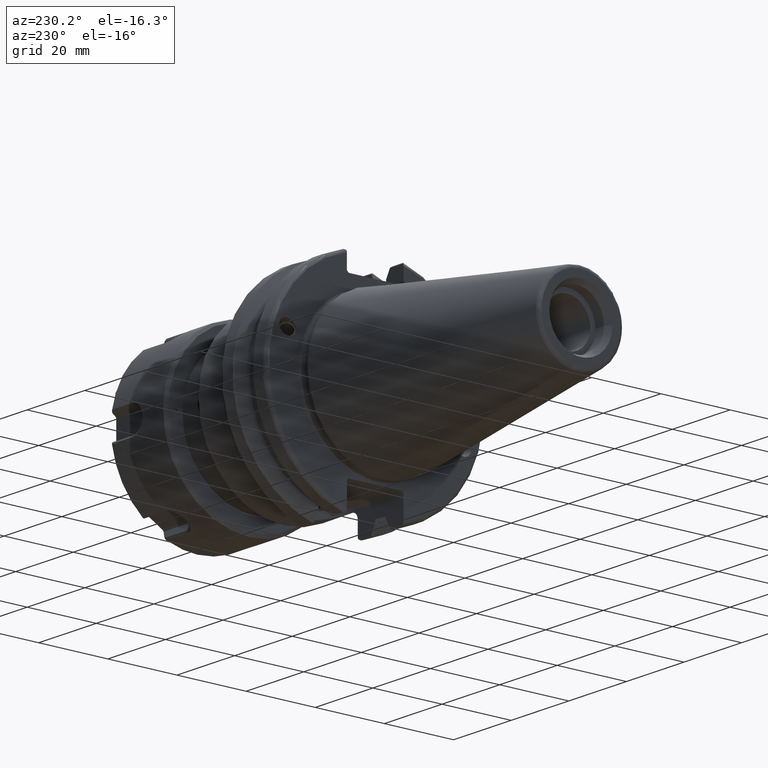
[diagram: clean part render]
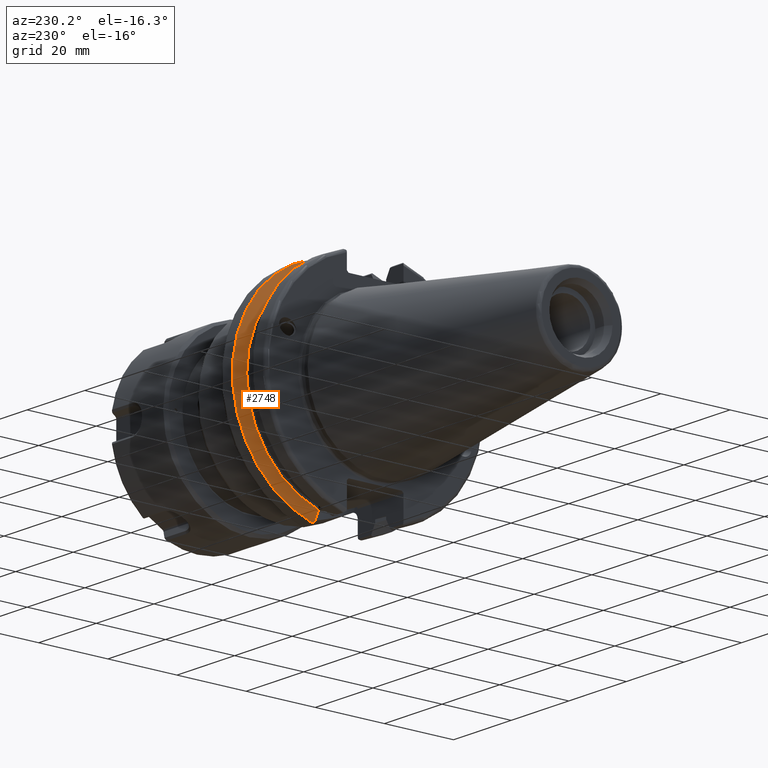
[diagram: same view with one face highlighted and labeled with its STEP entity id]
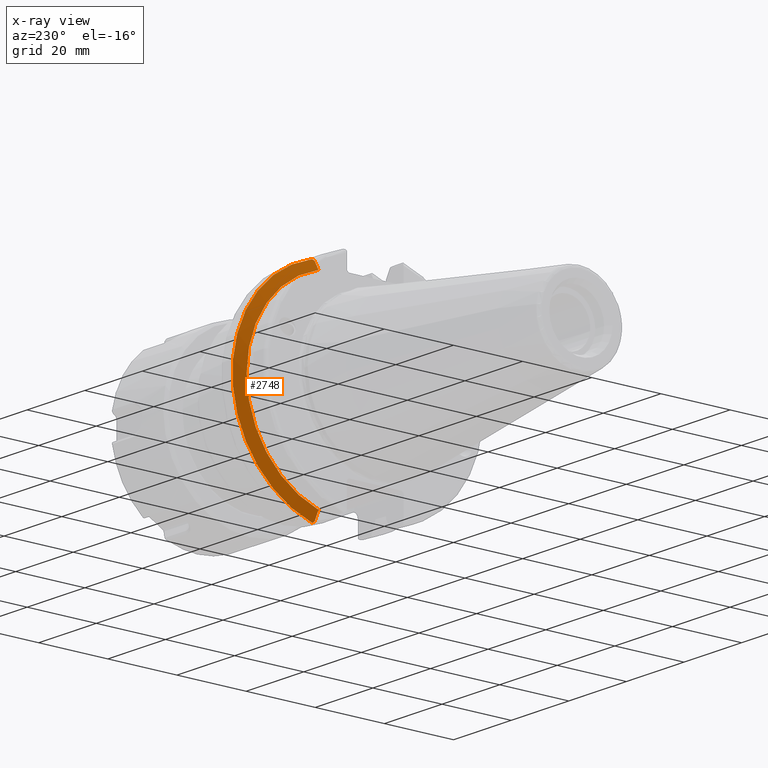
[diagram: x-ray of the same camera — body ghosted, the highlighted face saturated]
A machine part, auxiliary view. The second image highlights one B-rep face of the part: STEP entity #2748.
The next image is the same camera in x-ray: the body ghosted, the highlighted face saturated — about 0% of this face is hidden behind the body in this view.
In plain terms, the highlighted conical surface has half-angle 60 deg.
Its self-contained STEP definition (entity closure, byte-faithful):
#117=(
BOUNDED_CURVE()
B_SPLINE_CURVE(2,(#4370,#4371,#4372),.UNSPECIFIED.,.F.,.F.)
B_SPLINE_CURVE_WITH_KNOTS((3,3),(0.329353533631213,0.393258405001023),
 .UNSPECIFIED.)
CURVE()
GEOMETRIC_REPRESENTATION_ITEM()
RATIONAL_B_SPLINE_CURVE((1.00047644010591,1.00028444218294,1.))
REPRESENTATION_ITEM('')
);
#119=(
BOUNDED_CURVE()
B_SPLINE_CURVE(2,(#4397,#4398,#4399),.UNSPECIFIED.,.F.,.F.)
B_SPLINE_CURVE_WITH_KNOTS((3,3),(0.0550586467390499,0.33160778953585),
 .UNSPECIFIED.)
CURVE()
GEOMETRIC_REPRESENTATION_ITEM()
RATIONAL_B_SPLINE_CURVE((1.00031614445126,1.00095203904259,1.))
REPRESENTATION_ITEM('')
);
#127=(
BOUNDED_CURVE()
B_SPLINE_CURVE(2,(#4585,#4586,#4587),.UNSPECIFIED.,.F.,.F.)
B_SPLINE_CURVE_WITH_KNOTS((3,3),(0.,0.276549142796799),.UNSPECIFIED.)
CURVE()
GEOMETRIC_REPRESENTATION_ITEM()
RATIONAL_B_SPLINE_CURVE((1.,1.00095203904259,1.00031614445126))
REPRESENTATION_ITEM('')
);
#131=(
BOUNDED_CURVE()
B_SPLINE_CURVE(2,(#4624,#4625,#4626),.UNSPECIFIED.,.F.,.F.)
B_SPLINE_CURVE_WITH_KNOTS((3,3),(0.,0.0639048713675657),.UNSPECIFIED.)
CURVE()
GEOMETRIC_REPRESENTATION_ITEM()
RATIONAL_B_SPLINE_CURVE((1.,1.00028444218289,1.00047644010584))
REPRESENTATION_ITEM('')
);
#454=FACE_OUTER_BOUND('',#622,.T.);
#622=EDGE_LOOP('',(#2215,#2216,#2217,#2218,#2219,#2220));
#1100=CIRCLE('',#3024,31.75);
#1110=CIRCLE('',#3047,28.9593772964944);
#1249=VERTEX_POINT('',#4367);
#1250=VERTEX_POINT('',#4369);
#1256=VERTEX_POINT('',#4395);
#1288=VERTEX_POINT('',#4582);
#1289=VERTEX_POINT('',#4584);
#1297=VERTEX_POINT('',#4614);
#1535=EDGE_CURVE('',#1249,#1250,#117,.T.);
#1546=EDGE_CURVE('',#1249,#1256,#119,.T.);
#1599=EDGE_CURVE('',#1289,#1288,#127,.T.);
#1611=EDGE_CURVE('',#1250,#1297,#1100,.T.);
#1615=EDGE_CURVE('',#1297,#1288,#131,.T.);
#1627=EDGE_CURVE('',#1256,#1289,#1110,.T.);
#2215=ORIENTED_EDGE('',*,*,#1535,.F.);
#2216=ORIENTED_EDGE('',*,*,#1546,.T.);
#2217=ORIENTED_EDGE('',*,*,#1627,.T.);
#2218=ORIENTED_EDGE('',*,*,#1599,.T.);
#2219=ORIENTED_EDGE('',*,*,#1615,.F.);
#2220=ORIENTED_EDGE('',*,*,#1611,.F.);
#2665=CONICAL_SURFACE('',#3049,30.3546886482472,1.0471975511966);
#2748=ADVANCED_FACE('',(#454),#2665,.T.);
#3024=AXIS2_PLACEMENT_3D('',#4615,#3495,#3496);
#3047=AXIS2_PLACEMENT_3D('',#4653,#3544,#3545);
#3049=AXIS2_PLACEMENT_3D('',#4655,#3548,#3549);
#3495=DIRECTION('center_axis',(1.,0.,0.));
#3496=DIRECTION('ref_axis',(0.,0.,-1.));
#3544=DIRECTION('center_axis',(1.,0.,0.));
#3545=DIRECTION('ref_axis',(0.,0.,-1.));
#3548=DIRECTION('center_axis',(1.,0.,0.));
#3549=DIRECTION('ref_axis',(0.,1.,0.));
#4367=CARTESIAN_POINT('',(14.3744146964874,8.19,-30.1755016258903));
#4369=CARTESIAN_POINT('',(14.6531667690756,8.67204822802685,-30.5427254764662));
#4370=CARTESIAN_POINT('Ctrl Pts',(14.3744146964874,8.19,-30.1755016258903));
#4371=CARTESIAN_POINT('Ctrl Pts',(14.5121085187884,8.42917748263462,-30.3577067892692));
#4372=CARTESIAN_POINT('Ctrl Pts',(14.6531667690756,8.67204822802685,-30.5427254764662));
#4395=CARTESIAN_POINT('',(13.042,8.19,-27.7771386827498));
#4397=CARTESIAN_POINT('Ctrl Pts',(14.3744146964874,8.19,-30.1755016258903));
#4398=CARTESIAN_POINT('Ctrl Pts',(13.6806364384741,8.19,-28.930368953967));
#4399=CARTESIAN_POINT('Ctrl Pts',(13.042,8.19,-27.7771386827498));
#4582=CARTESIAN_POINT('',(14.3744146964874,8.19,30.1755016258903));
#4584=CARTESIAN_POINT('',(13.042,8.19,27.7771386827498));
#4585=CARTESIAN_POINT('Ctrl Pts',(13.042,8.19,27.7771386827498));
#4586=CARTESIAN_POINT('Ctrl Pts',(13.6806364384741,8.19,28.930368953967));
#4587=CARTESIAN_POINT('Ctrl Pts',(14.3744146964874,8.19,30.1755016258903));
#4614=CARTESIAN_POINT('',(14.6531667690756,8.67204822802685,30.5427254764662));
#4615=CARTESIAN_POINT('Origin',(14.6531667690756,0.,0.));
#4624=CARTESIAN_POINT('Ctrl Pts',(14.6531667690756,8.67204822802686,30.5427254764662));
#4625=CARTESIAN_POINT('Ctrl Pts',(14.5121085187837,8.42917748262643,30.3577067892629));
#4626=CARTESIAN_POINT('Ctrl Pts',(14.3744146964874,8.19,30.1755016258903));
#4653=CARTESIAN_POINT('Origin',(13.042,0.,0.));
#4655=CARTESIAN_POINT('Origin',(13.8475833845378,0.,0.));